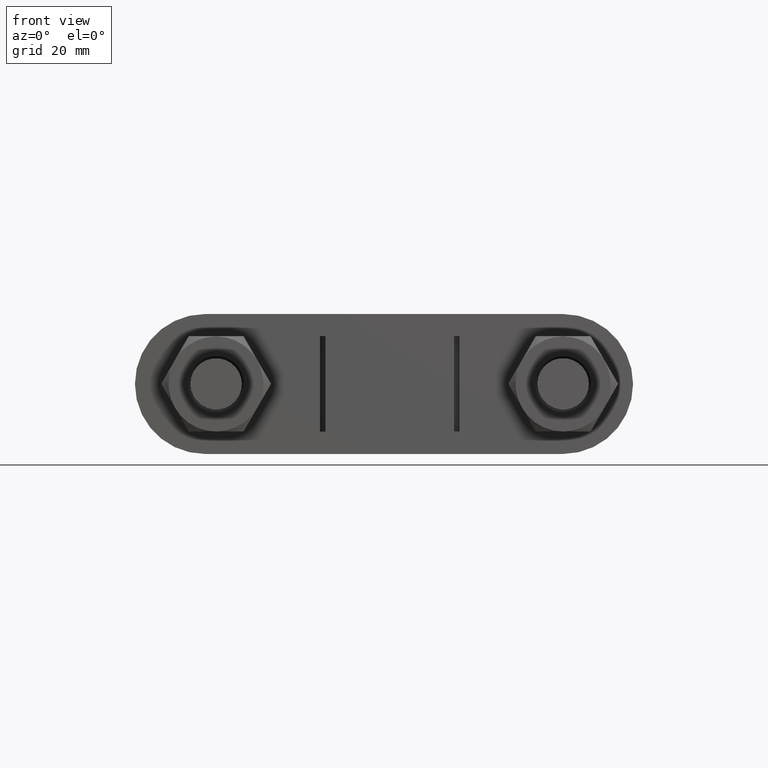
[diagram: clean part render]
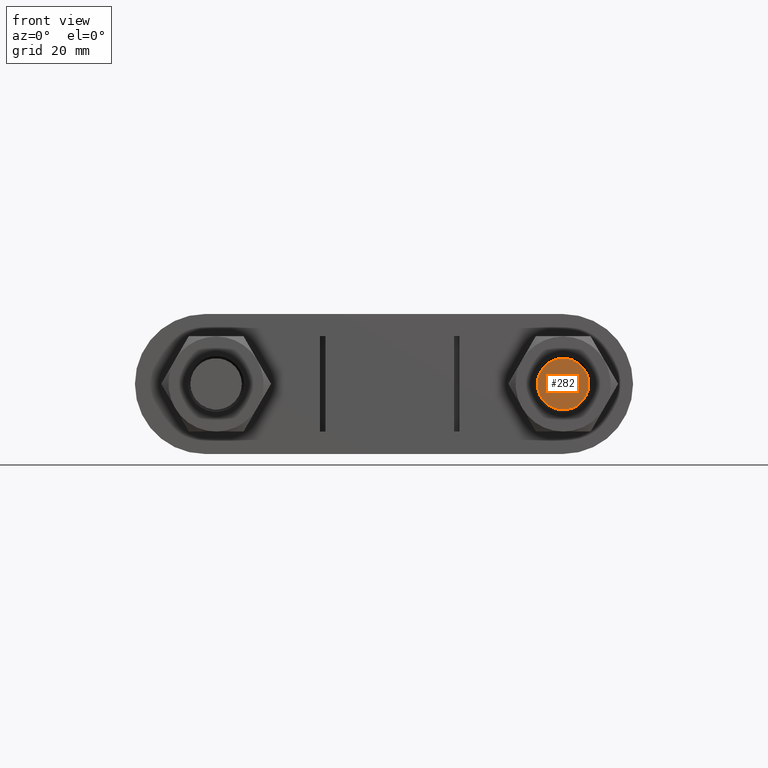
[diagram: same view with one face highlighted and labeled with its STEP entity id]
A machine part, front view. The second image highlights one B-rep face of the part: STEP entity #282.
In plain terms, the highlighted planar face has unit normal (-0, -1, -0).
Its self-contained STEP definition (entity closure, byte-faithful):
#282 = ADVANCED_FACE( '', ( #413 ), #414, .T. );
#413 = FACE_OUTER_BOUND( '', #1341, .T. );
#414 = PLANE( '', #1342 );
#1341 = EDGE_LOOP( '', ( #1680 ) );
#1342 = AXIS2_PLACEMENT_3D( '', #1681, #1682, #1683 );
#1680 = ORIENTED_EDGE( '', *, *, #2423, .T. );
#1681 = CARTESIAN_POINT( '', ( 31.0000000000000, -3.79627969684937E-015, 0.000000000000000 ) );
#1682 = DIRECTION( '', ( -1.22460635382238E-016, -1.00000000000000, -1.83690953073357E-016 ) );
#1683 = DIRECTION( '', ( 2.24949108273321E-032, 1.83690953073357E-016, -1.00000000000000 ) );
#2423 = EDGE_CURVE( '', #2685, #2685, #2686, .T. );
#2685 = VERTEX_POINT( '', #3304 );
#2686 = CIRCLE( '', #3305, 4.60000000000000 );
#3304 = CARTESIAN_POINT( '', ( 26.4000000000000, -3.23296077409108E-015, 0.000000000000000 ) );
#3305 = AXIS2_PLACEMENT_3D( '', #3963, #3964, #3965 );
#3963 = CARTESIAN_POINT( '', ( 31.0000000000000, -3.79627969684937E-015, 0.000000000000000 ) );
#3964 = DIRECTION( '', ( -1.22460635382238E-016, -1.00000000000000, -1.83690953073357E-016 ) );
#3965 = DIRECTION( '', ( -1.00000000000000, 1.22460635382238E-016, 0.000000000000000 ) );